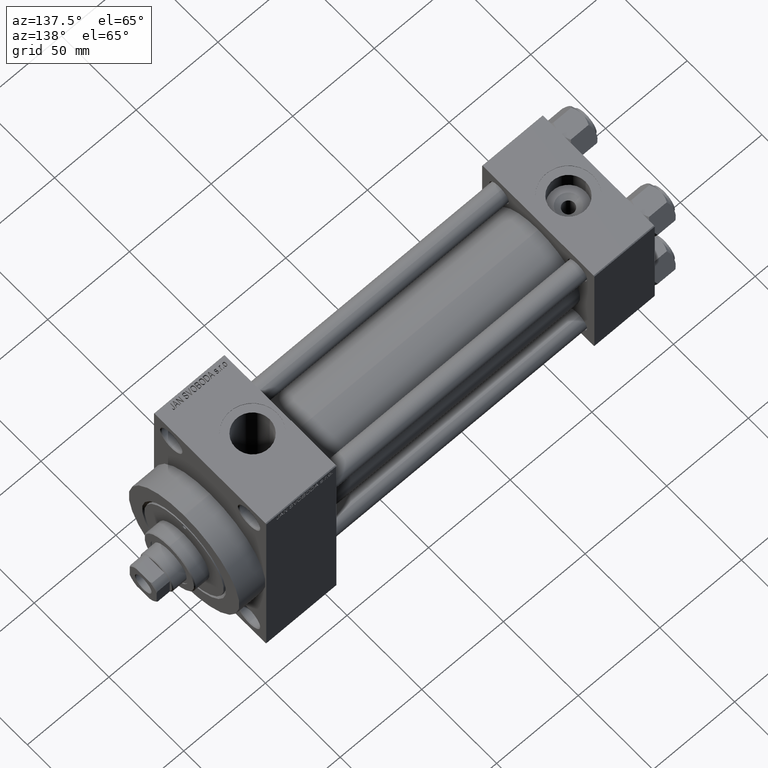
[diagram: clean part render]
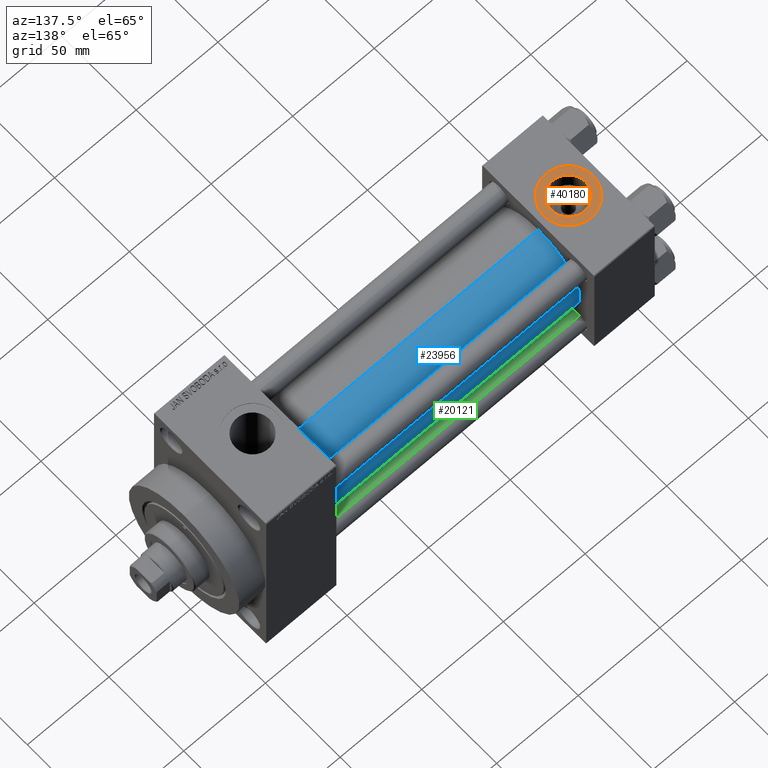
[diagram: same view with three faces highlighted in distinct colors, each labeled with its STEP entity id]
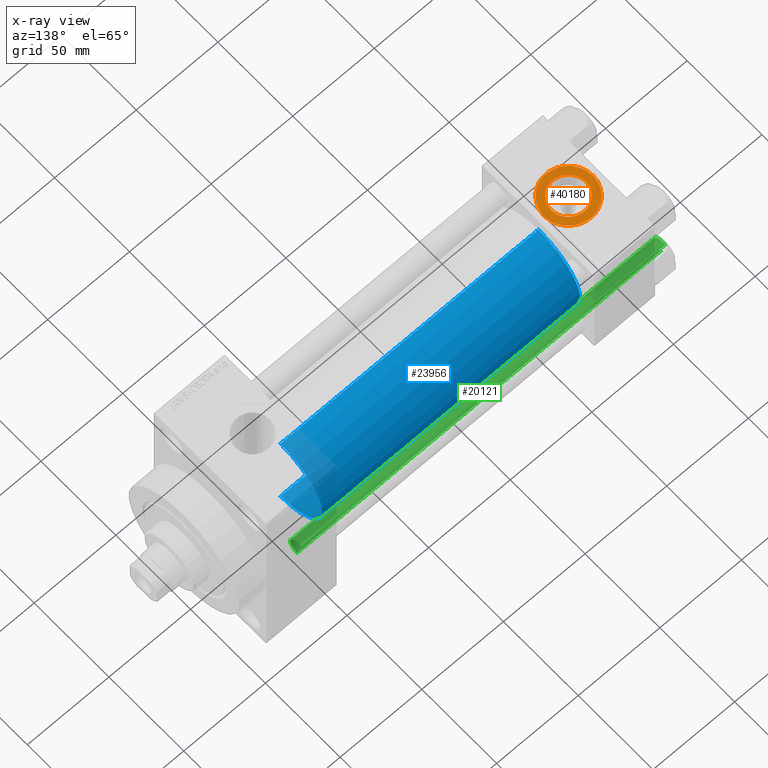
[diagram: x-ray of the same camera — body ghosted, the three highlighted faces saturated]
A machine part, auxiliary view with three faces highlighted in distinct colors.
The next image is the same camera in x-ray (body ghosted, the three faces saturated) — at least one of them is partly hidden behind the body in this view.
Their STEP definitions:

[orange] entity #40180 — the highlighted planar face has unit normal (0, 0, 1).
#470 = CARTESIAN_POINT ( 'NONE',  ( 3.499999999999997780, -3.367200229209391300E-15, 37.29999999999999716 ) ) ;
#2234 = CIRCLE ( 'NONE', #38998, 10.48000000000000043 ) ;
#2524 = DIRECTION ( 'NONE',  ( 0.000000000000000000, 0.000000000000000000, 1.000000000000000000 ) ) ;
#5780 = VERTEX_POINT ( 'NONE', #470 ) ;
#6310 = CARTESIAN_POINT ( 'NONE',  ( 18.50000000000000000, -5.204170427930421283E-15, 37.29999999999999716 ) ) ;
#7882 = AXIS2_PLACEMENT_3D ( 'NONE', #42716, #41590, #39120 ) ;
#8287 = DIRECTION ( 'NONE',  ( 0.000000000000000000, 0.000000000000000000, 1.000000000000000000 ) ) ;
#8430 = CIRCLE ( 'NONE', #15305, 10.48000000000000043 ) ;
#9250 = CARTESIAN_POINT ( 'NONE',  ( 18.50000000000000000, -5.204170427930421283E-15, 37.29999999999999716 ) ) ;
#12364 = CARTESIAN_POINT ( 'NONE',  ( 18.50000000000000000, -5.204170427930421283E-15, 37.29999999999999716 ) ) ;
#12966 = EDGE_CURVE ( 'NONE', #25874, #26671, #8430, .T. ) ;
#13217 = VERTEX_POINT ( 'NONE', #33528 ) ;
#14993 = CIRCLE ( 'NONE', #31819, 15.00000000000000355 ) ;
#15305 = AXIS2_PLACEMENT_3D ( 'NONE', #42912, #35487, #20604 ) ;
#15700 = CARTESIAN_POINT ( 'NONE',  ( 8.019999999999999574, -3.920740582423995006E-15, 37.29999999999999716 ) ) ;
#16300 = CARTESIAN_POINT ( 'NONE',  ( 28.98000000000000043, -5.204170427930421283E-15, 37.29999999999999716 ) ) ;
#17143 = DIRECTION ( 'NONE',  ( 1.000000000000000000, 0.000000000000000000, 0.000000000000000000 ) ) ;
#17822 = CIRCLE ( 'NONE', #7882, 15.00000000000000355 ) ;
#19396 = ORIENTED_EDGE ( 'NONE', *, *, #45746, .F. ) ;
#19522 = FACE_BOUND ( 'NONE', #19724, .T. ) ;
#19724 = EDGE_LOOP ( 'NONE', ( #19396, #21802 ) ) ;
#19827 = ORIENTED_EDGE ( 'NONE', *, *, #40351, .T. ) ;
#20578 = EDGE_CURVE ( 'NONE', #13217, #5780, #14993, .T. ) ;
#20604 = DIRECTION ( 'NONE',  ( 1.000000000000000000, 0.000000000000000000, 0.000000000000000000 ) ) ;
#21802 = ORIENTED_EDGE ( 'NONE', *, *, #12966, .F. ) ;
#22881 = DIRECTION ( 'NONE',  ( 1.000000000000000000, 0.000000000000000000, -0.000000000000000000 ) ) ;
#25874 = VERTEX_POINT ( 'NONE', #15700 ) ;
#26671 = VERTEX_POINT ( 'NONE', #16300 ) ;
#30033 = AXIS2_PLACEMENT_3D ( 'NONE', #12364, #8287, #22881 ) ;
#31812 = ORIENTED_EDGE ( 'NONE', *, *, #20578, .T. ) ;
#31819 = AXIS2_PLACEMENT_3D ( 'NONE', #6310, #32422, #43926 ) ;
#32422 = DIRECTION ( 'NONE',  ( 0.000000000000000000, 0.000000000000000000, 1.000000000000000000 ) ) ;
#33528 = CARTESIAN_POINT ( 'NONE',  ( 33.50000000000000000, -5.204170427930421283E-15, 37.29999999999999716 ) ) ;
#34159 = PLANE ( 'NONE',  #30033 ) ;
#35487 = DIRECTION ( 'NONE',  ( 0.000000000000000000, 0.000000000000000000, 1.000000000000000000 ) ) ;
#36429 = EDGE_LOOP ( 'NONE', ( #31812, #19827 ) ) ;
#38998 = AXIS2_PLACEMENT_3D ( 'NONE', #9250, #2524, #17143 ) ;
#39120 = DIRECTION ( 'NONE',  ( 1.000000000000000000, 0.000000000000000000, 0.000000000000000000 ) ) ;
#40180 = ADVANCED_FACE ( 'NONE', ( #19522, #41112 ), #34159, .T. ) ;
#40351 = EDGE_CURVE ( 'NONE', #5780, #13217, #17822, .T. ) ;
#41112 = FACE_OUTER_BOUND ( 'NONE', #36429, .T. ) ;
#41590 = DIRECTION ( 'NONE',  ( 0.000000000000000000, 0.000000000000000000, 1.000000000000000000 ) ) ;
#42716 = CARTESIAN_POINT ( 'NONE',  ( 18.50000000000000000, -5.204170427930421283E-15, 37.29999999999999716 ) ) ;
#42912 = CARTESIAN_POINT ( 'NONE',  ( 18.50000000000000000, -5.204170427930421283E-15, 37.29999999999999716 ) ) ;
#43926 = DIRECTION ( 'NONE',  ( 1.000000000000000000, 0.000000000000000000, 0.000000000000000000 ) ) ;
#45746 = EDGE_CURVE ( 'NONE', #26671, #25874, #2234, .T. ) ;

[blue] entity #23956 — the highlighted cylindrical surface (partial cylindrical patch) has radius 28 mm, axis along (-1, -0, -0).
#75 = DIRECTION ( 'NONE',  ( 1.000000000000000000, -0.000000000000000000, 0.000000000000000000 ) ) ;
#746 = ORIENTED_EDGE ( 'NONE', *, *, #25580, .F. ) ;
#2853 = EDGE_CURVE ( 'NONE', #3604, #31126, #47149, .T. ) ;
#3403 = CARTESIAN_POINT ( 'NONE',  ( 37.00000000000000711, 8.269258236473784371E-16, -28.00000000000000000 ) ) ;
#3604 = VERTEX_POINT ( 'NONE', #18543 ) ;
#3938 = VERTEX_POINT ( 'NONE', #3403 ) ;
#4519 = AXIS2_PLACEMENT_3D ( 'NONE', #29331, #75, #43726 ) ;
#9895 = CIRCLE ( 'NONE', #4519, 28.00000000000000000 ) ;
#10113 = LINE ( 'NONE', #20647, #32752 ) ;
#10900 = EDGE_CURVE ( 'NONE', #3938, #15695, #9895, .T. ) ;
#11439 = CARTESIAN_POINT ( 'NONE',  ( 195.0000000000000000, -2.602085213965210642E-15, 0.000000000000000000 ) ) ;
#14865 = CARTESIAN_POINT ( 'NONE',  ( 195.0000000000000000, 8.269258236473784371E-16, -28.00000000000000000 ) ) ;
#15022 = CYLINDRICAL_SURFACE ( 'NONE', #38047, 28.00000000000000000 ) ;
#15695 = VERTEX_POINT ( 'NONE', #44051 ) ;
#16325 = ORIENTED_EDGE ( 'NONE', *, *, #42301, .T. ) ;
#16570 = ORIENTED_EDGE ( 'NONE', *, *, #2853, .F. ) ;
#17587 = CARTESIAN_POINT ( 'NONE',  ( 195.0000000000000000, -2.602085213965210642E-15, 0.000000000000000000 ) ) ;
#18148 = DIRECTION ( 'NONE',  ( -1.000000000000000000, -0.000000000000000000, -0.000000000000000000 ) ) ;
#18543 = CARTESIAN_POINT ( 'NONE',  ( 195.0000000000000000, 8.269258236473784371E-16, -28.00000000000000000 ) ) ;
#20647 = CARTESIAN_POINT ( 'NONE',  ( 195.0000000000000000, -2.602085213965210642E-15, 28.00000000000000000 ) ) ;
#22732 = LINE ( 'NONE', #14865, #24840 ) ;
#23956 = ADVANCED_FACE ( 'NONE', ( #25567 ), #15022, .T. ) ;
#24840 = VECTOR ( 'NONE', #44798, 1000.000000000000000 ) ;
#25567 = FACE_OUTER_BOUND ( 'NONE', #40944, .T. ) ;
#25580 = EDGE_CURVE ( 'NONE', #31126, #15695, #10113, .T. ) ;
#29331 = CARTESIAN_POINT ( 'NONE',  ( 37.00000000000000711, -2.602085213965210642E-15, 0.000000000000000000 ) ) ;
#31126 = VERTEX_POINT ( 'NONE', #46698 ) ;
#32614 = AXIS2_PLACEMENT_3D ( 'NONE', #17587, #32679, #47298 ) ;
#32679 = DIRECTION ( 'NONE',  ( 1.000000000000000000, 0.000000000000000000, 0.000000000000000000 ) ) ;
#32752 = VECTOR ( 'NONE', #39575, 1000.000000000000000 ) ;
#36184 = ORIENTED_EDGE ( 'NONE', *, *, #10900, .T. ) ;
#37062 = DIRECTION ( 'NONE',  ( 0.000000000000000000, 0.000000000000000000, 1.000000000000000000 ) ) ;
#38047 = AXIS2_PLACEMENT_3D ( 'NONE', #11439, #18148, #37062 ) ;
#39575 = DIRECTION ( 'NONE',  ( -1.000000000000000000, -0.000000000000000000, -0.000000000000000000 ) ) ;
#40944 = EDGE_LOOP ( 'NONE', ( #16570, #16325, #36184, #746 ) ) ;
#42301 = EDGE_CURVE ( 'NONE', #3604, #3938, #22732, .T. ) ;
#43726 = DIRECTION ( 'NONE',  ( 0.000000000000000000, 0.000000000000000000, 1.000000000000000000 ) ) ;
#44051 = CARTESIAN_POINT ( 'NONE',  ( 37.00000000000000711, -2.602085213965210642E-15, 28.00000000000000000 ) ) ;
#44798 = DIRECTION ( 'NONE',  ( -1.000000000000000000, -0.000000000000000000, -0.000000000000000000 ) ) ;
#46698 = CARTESIAN_POINT ( 'NONE',  ( 195.0000000000000000, -2.602085213965210642E-15, 28.00000000000000000 ) ) ;
#47149 = CIRCLE ( 'NONE', #32614, 28.00000000000000000 ) ;
#47298 = DIRECTION ( 'NONE',  ( 0.000000000000000000, 0.000000000000000000, -1.000000000000000000 ) ) ;

[green] entity #20121 — the highlighted cylindrical surface (edge-blend (fillet) strip) has radius 6 mm, axis along (1, -0, 0).
#420 = CARTESIAN_POINT ( 'NONE',  ( 0.000000000000000000, 0.000000000000000000, 223.5000000000000000 ) ) ;
#2349 = DIRECTION ( 'NONE',  ( -0.000000000000000000, -0.000000000000000000, -1.000000000000000000 ) ) ;
#4415 = CIRCLE ( 'NONE', #47286, 6.000000000000000888 ) ;
#6911 = ORIENTED_EDGE ( 'NONE', *, *, #9556, .T. ) ;
#6914 = CARTESIAN_POINT ( 'NONE',  ( 6.000000000000000888, 7.347880794884120722E-16, 0.5000000000000004441 ) ) ;
#7129 = EDGE_CURVE ( 'NONE', #32553, #30927, #4415, .T. ) ;
#7408 = VERTEX_POINT ( 'NONE', #19471 ) ;
#9074 = LINE ( 'NONE', #46443, #14450 ) ;
#9479 = CYLINDRICAL_SURFACE ( 'NONE', #37907, 6.000000000000000888 ) ;
#9556 = EDGE_CURVE ( 'NONE', #30927, #7408, #9074, .T. ) ;
#10421 = EDGE_CURVE ( 'NONE', #32553, #31189, #46046, .T. ) ;
#14030 = DIRECTION ( 'NONE',  ( -0.000000000000000000, -0.000000000000000000, -1.000000000000000000 ) ) ;
#14111 = ORIENTED_EDGE ( 'NONE', *, *, #7129, .T. ) ;
#14450 = VECTOR ( 'NONE', #2349, 1000.000000000000000 ) ;
#17048 = CARTESIAN_POINT ( 'NONE',  ( -6.000000000000000888, 0.000000000000000000, 223.5000000000000000 ) ) ;
#18085 = DIRECTION ( 'NONE',  ( -1.000000000000000000, 0.000000000000000000, 0.000000000000000000 ) ) ;
#18401 = EDGE_CURVE ( 'NONE', #7408, #31189, #34831, .T. ) ;
#19471 = CARTESIAN_POINT ( 'NONE',  ( -6.000000000000000888, 0.000000000000000000, 0.5000000000000004441 ) ) ;
#19923 = CARTESIAN_POINT ( 'NONE',  ( 6.000000000000000888, 7.347880794884120722E-16, 224.0000000000000000 ) ) ;
#20121 = ADVANCED_FACE ( 'NONE', ( #46145 ), #9479, .T. ) ;
#23178 = DIRECTION ( 'NONE',  ( 0.000000000000000000, 0.000000000000000000, -1.000000000000000000 ) ) ;
#23787 = DIRECTION ( 'NONE',  ( -0.000000000000000000, -0.000000000000000000, 1.000000000000000000 ) ) ;
#27819 = DIRECTION ( 'NONE',  ( -0.000000000000000000, -0.000000000000000000, -1.000000000000000000 ) ) ;
#28000 = EDGE_LOOP ( 'NONE', ( #34346, #14111, #6911, #32453 ) ) ;
#29765 = VECTOR ( 'NONE', #27819, 1000.000000000000000 ) ;
#30145 = DIRECTION ( 'NONE',  ( 1.000000000000000000, 0.000000000000000000, 0.000000000000000000 ) ) ;
#30927 = VERTEX_POINT ( 'NONE', #17048 ) ;
#31189 = VERTEX_POINT ( 'NONE', #6914 ) ;
#32453 = ORIENTED_EDGE ( 'NONE', *, *, #18401, .T. ) ;
#32553 = VERTEX_POINT ( 'NONE', #42105 ) ;
#34346 = ORIENTED_EDGE ( 'NONE', *, *, #10421, .F. ) ;
#34831 = CIRCLE ( 'NONE', #47080, 6.000000000000000888 ) ;
#37907 = AXIS2_PLACEMENT_3D ( 'NONE', #38958, #14030, #18085 ) ;
#38184 = CARTESIAN_POINT ( 'NONE',  ( 0.000000000000000000, 0.000000000000000000, 0.5000000000000004441 ) ) ;
#38958 = CARTESIAN_POINT ( 'NONE',  ( 0.000000000000000000, 0.000000000000000000, 224.0000000000000000 ) ) ;
#42105 = CARTESIAN_POINT ( 'NONE',  ( 6.000000000000000888, 7.347880794884120722E-16, 223.5000000000000000 ) ) ;
#45138 = DIRECTION ( 'NONE',  ( 1.000000000000000000, 0.000000000000000000, 0.000000000000000000 ) ) ;
#46046 = LINE ( 'NONE', #19923, #29765 ) ;
#46145 = FACE_OUTER_BOUND ( 'NONE', #28000, .T. ) ;
#46443 = CARTESIAN_POINT ( 'NONE',  ( -6.000000000000000888, 0.000000000000000000, 224.0000000000000000 ) ) ;
#47080 = AXIS2_PLACEMENT_3D ( 'NONE', #38184, #23787, #45138 ) ;
#47286 = AXIS2_PLACEMENT_3D ( 'NONE', #420, #23178, #30145 ) ;